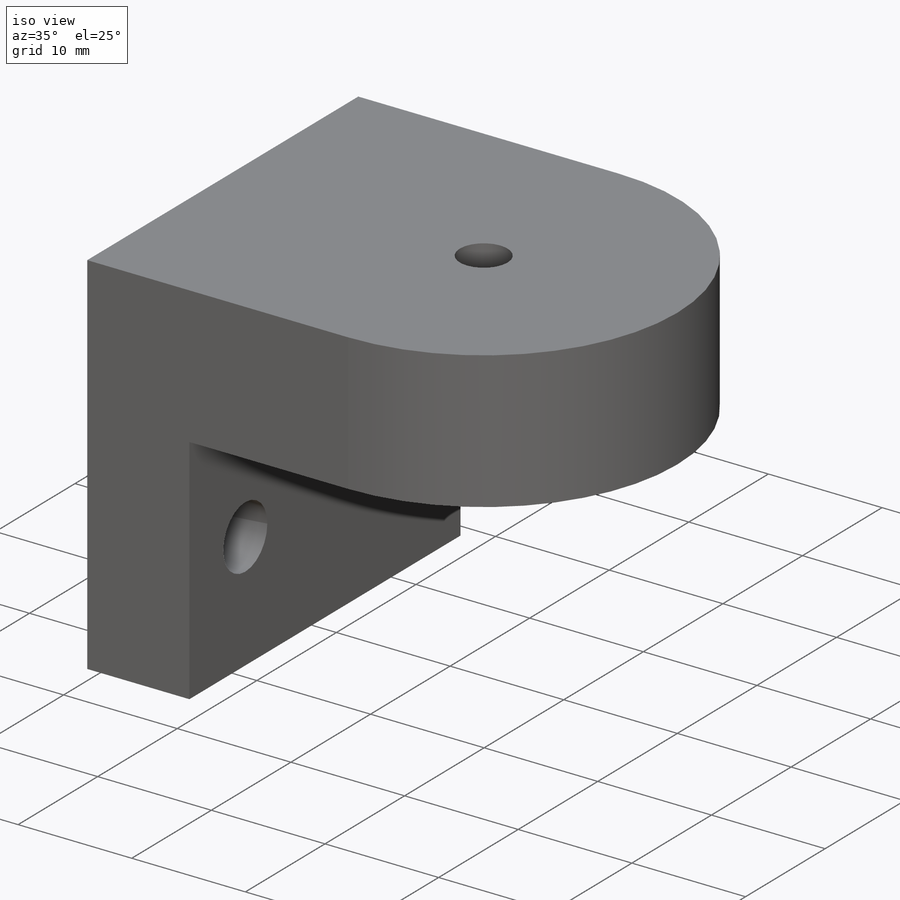
[diagram: iso view]
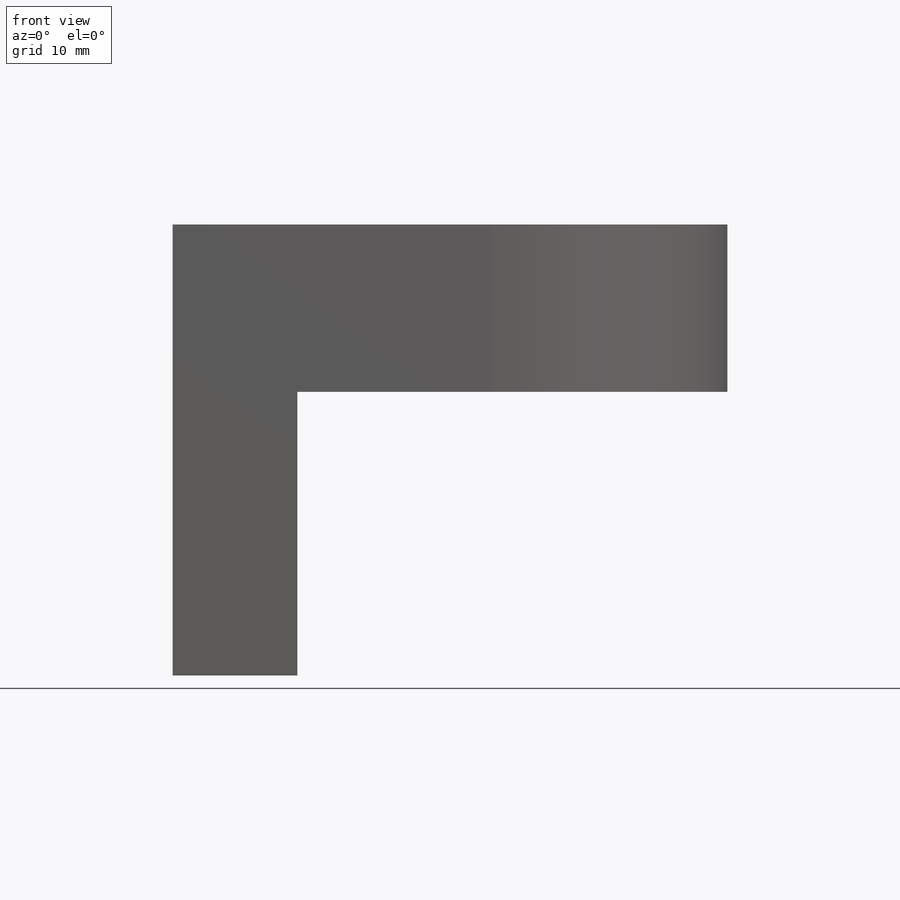
[diagram: front view]
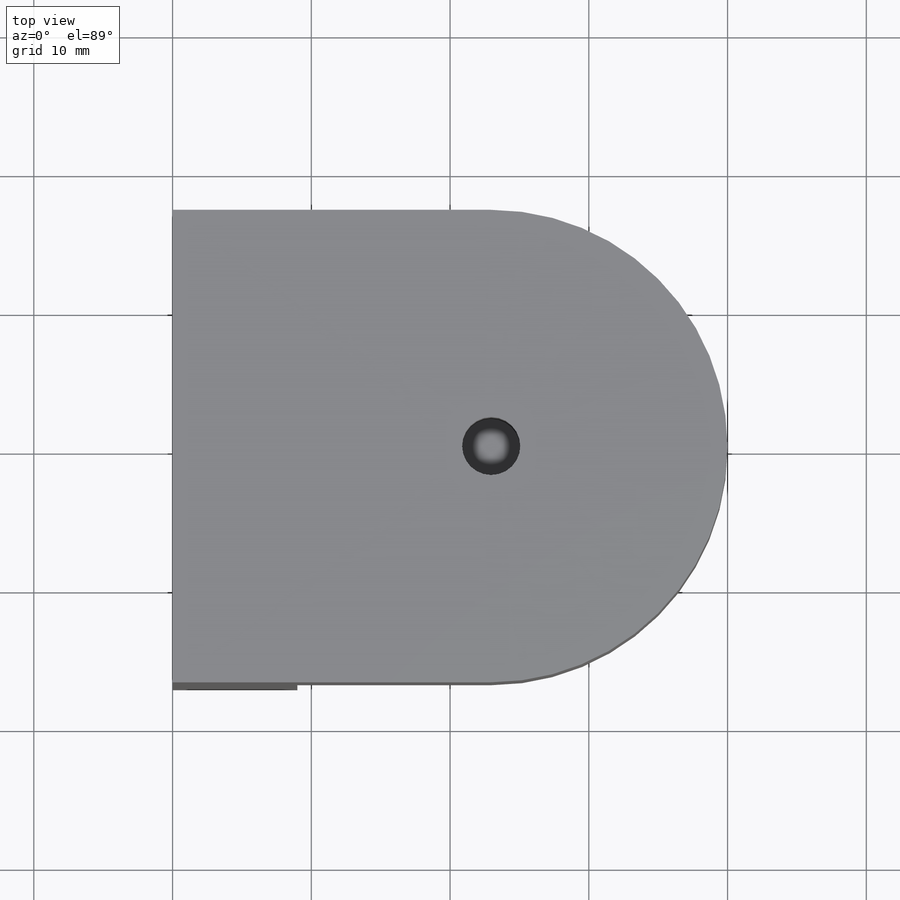
[diagram: top view]
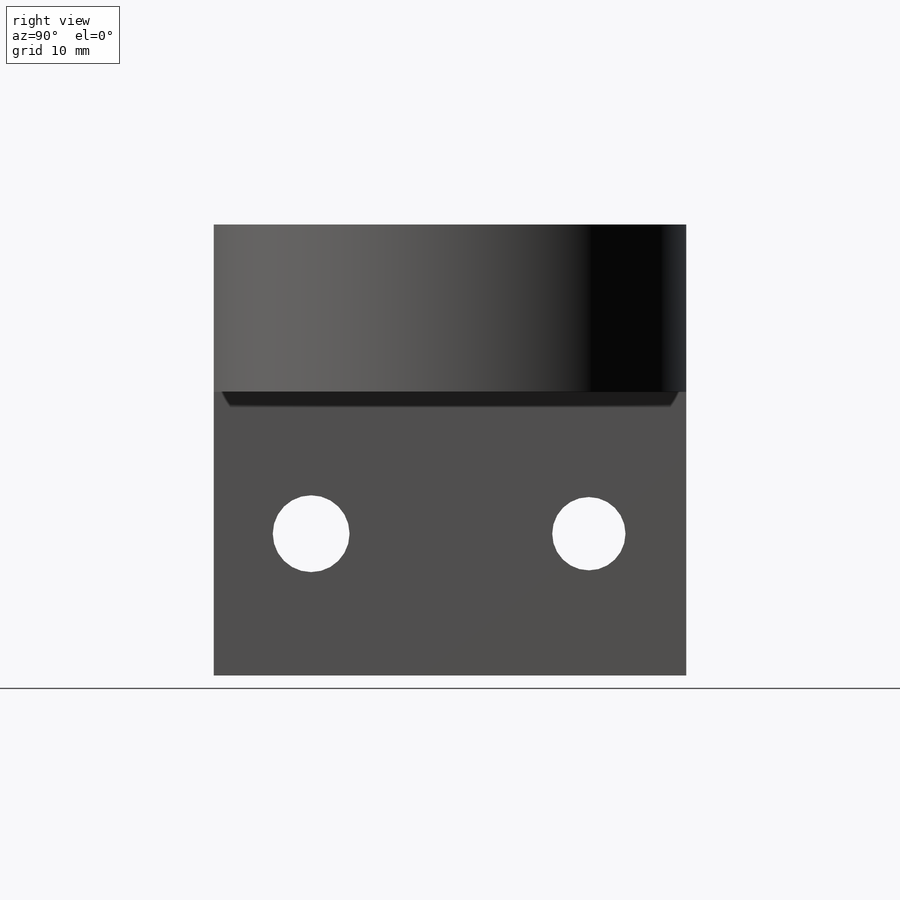
[diagram: right view]
SOLIDWORKS PART (.sldprt)
format: sldprt  version: not decoded by parser v0  size: 171,520 bytes
history: native  units: mm
features: sketch x5, extrude x2, cut_extrude x2, material x1, revolve x1 (+12 scaffold rows collapsed)
feature tree (23):
  scaffold x12  (default folders/planes/origin — collapsed)
  material  "Material <not specified>"
  sketch  "Sketch1"  dims[D1=34.0614mm D2=32.512mm]
  extrude  "Boss-Extrude1"  Depth=8.9916mm
  sketch  "Sketch2"  dims[D1=12.065mm]
  extrude  "Boss-Extrude2"  Depth=13.97mm
  sketch  "Sketch3"
  revolve  "Revolve1"  Angle=180deg
  sketch  "Sketch4"  dims[D1=4.191mm]
  cut_extrude  "Cut-Extrude1"  Depth=7.62mm
  sketch  "Sketch5"  dims[D3=5.5372mm D4=5.2832mm D1=7.0231mm D2=7.0231mm]
  cut_extrude  "Cut-Extrude2"  [1 undecoded]
decode coverage: 8 of 10 modeling features carry decoded parameters
note: 1 parameter value undecoded
note: suppression state not decoded; provenance and decode notes live in map.json
